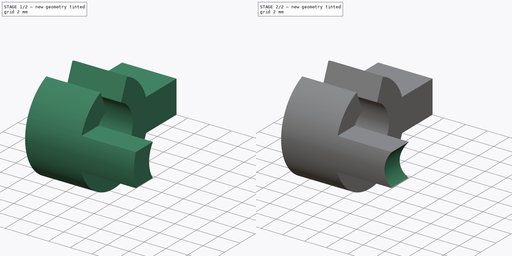
[diagram: build sequence overview — one tinted view per stage of 2, left to right]
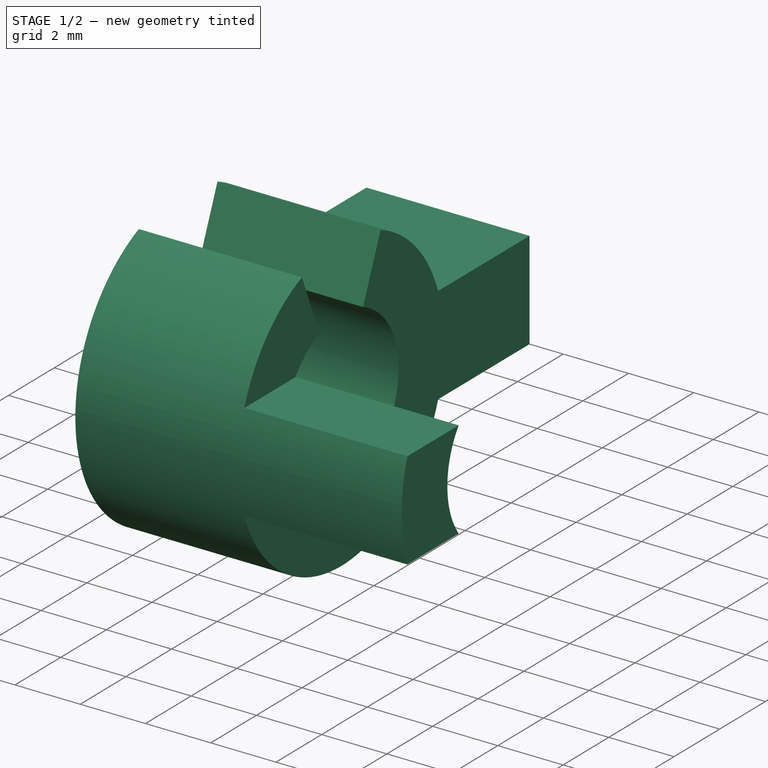
[diagram: stage 1 of 2 — iso view after this stage's code; geometry added in this stage tinted green]
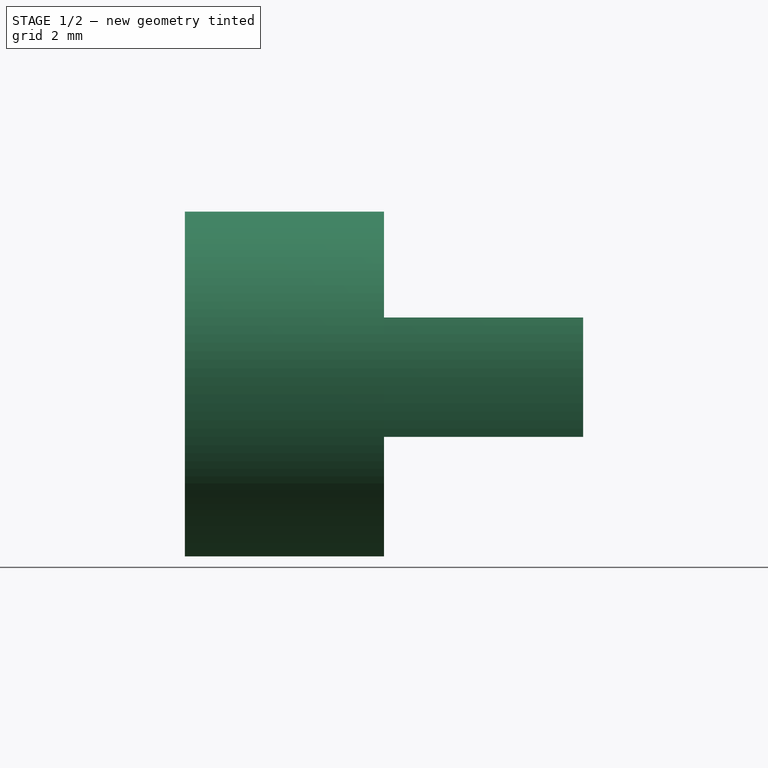
[diagram: stage 1 of 2 — front view after this stage's code; geometry added in this stage tinted green]
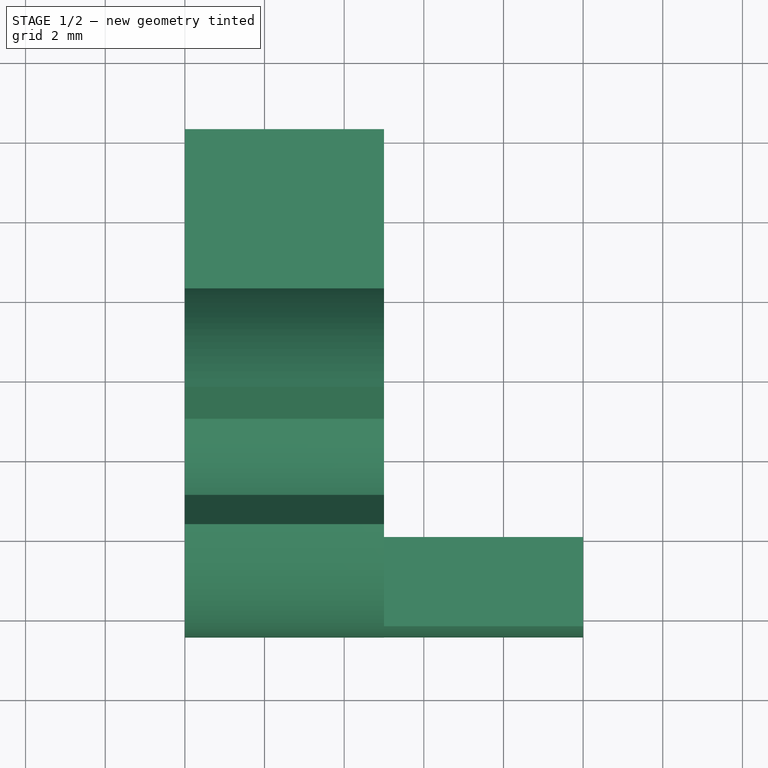
[diagram: stage 1 of 2 — top view after this stage's code; geometry added in this stage tinted green]
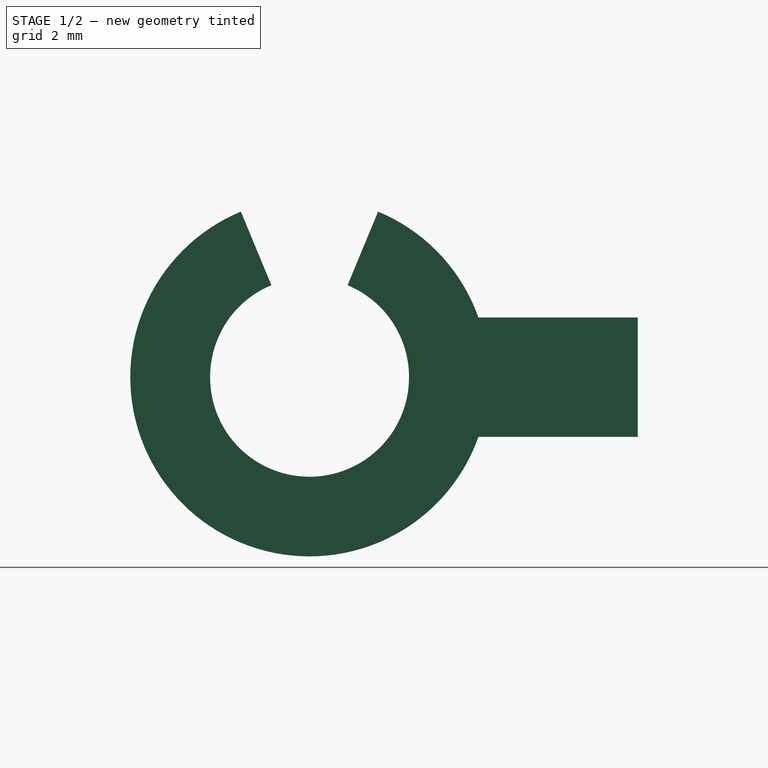
[diagram: stage 1 of 2 — right view after this stage's code; geometry added in this stage tinted green]
FCSTD DOCUMENT  (FreeCAD 1.0R39109 (Git))
Label: stopper
License: All rights reserved
LicenseURL: https://en.wikipedia.org/wiki/All_rights_reserved
objects: PartDesign::Pad×2, Sketcher::SketchObject×1, PartDesign::SubtractiveCylinder×1, PartDesign::Body×1
note: 12 computed .brp shape members not serialized (recipe doc carries the construction recipe); baked Part::Feature solids carry a one-line shape summary decoded from their .brp

FEATURE [Sketcher::SketchObject] Sketch
  ArcFitTolerance = 1e-06
  AttachmentSupport = -> [YZ_Plane]
  FullyConstrained = false
  MakeInternals = false
  MapMode = 5
  Placement = pos=(0,0,0) rot=(0.57735,0.57735,0.57735;2.0944rad)
  expr: Constraints[3] = .Constraints.innerDia + 4 mm
  sketch-geometry (17):
    g0: ArcOfCircle CenterX=0 CenterY=0 CenterZ=0 NormalX=0 NormalY=0 NormalZ=1 AngleXU=0 Radius=4.5 StartAngle=1.9635 EndAngle=5.94335
    g1: ArcOfCircle CenterX=0 CenterY=0 CenterZ=0 NormalX=0 NormalY=0 NormalZ=1 AngleXU=0 Radius=2.5 StartAngle=1.9635 EndAngle=7.46128
    g2: LineSegment StartX=1.72208 StartY=4.15746 StartZ=0 EndX=0.956709 EndY=2.3097 EndZ=0
    g3: LineSegment StartX=-1.72208 StartY=4.15746 StartZ=0 EndX=-0.956709 EndY=2.3097 EndZ=0
    g4: LineSegment [constr] StartX=-0.956709 StartY=2.3097 StartZ=0 EndX=0 EndY=2.3097 EndZ=0
    g5: LineSegment [constr] StartX=0 StartY=2.3097 StartZ=0 EndX=0.956709 EndY=2.3097 EndZ=0
    g6: LineSegment [constr] StartX=-0.956709 StartY=2.3097 StartZ=0 EndX=0 EndY=0 EndZ=0
    g7: LineSegment [constr] StartX=0 StartY=0 StartZ=0 EndX=0.956709 EndY=2.3097 EndZ=0
    g8: LineSegment StartX=-4.24264 StartY=1.5 StartZ=0 EndX=-2 EndY=1.5 EndZ=0
    g9: LineSegment StartX=-2 StartY=-1.5 StartZ=0 EndX=-4.24264 EndY=-1.5 EndZ=0
    g10: LineSegment StartX=4.24264 StartY=1.5 StartZ=0 EndX=8.24264 EndY=1.5 EndZ=0
    g11: LineSegment StartX=4.24264 StartY=-1.5 StartZ=0 EndX=8.24264 EndY=-1.5 EndZ=0
    g12: LineSegment StartX=8.24264 StartY=-1.5 StartZ=0 EndX=8.24264 EndY=1.5 EndZ=0
    g13: ArcOfCircle CenterX=0 CenterY=0 CenterZ=0 NormalX=0 NormalY=0 NormalZ=1 AngleXU=0 Radius=4.5 StartAngle=0.339837 EndAngle=1.1781
    g14: LineSegment [constr] StartX=8.24264 StartY=1.5 StartZ=0 EndX=8.24264 EndY=-1.468e-13 EndZ=0
    g15: ArcOfCircle CenterX=0.021799 CenterY=1.1e-15 CenterZ=0 NormalX=0 NormalY=0 NormalZ=1 AngleXU=0 Radius=2.51747 StartAngle=2.50329 EndAngle=3.7799
    g16: ArcOfCircle CenterX=0.021799 CenterY=1.1e-15 CenterZ=0 NormalX=0 NormalY=0 NormalZ=1 AngleXU=0 Radius=4.52056 StartAngle=2.80336 EndAngle=3.47982
  constraints (46):
    c: Coincident(g0,g-1)
    c: Coincident(g1,g0)
    c: Diameter(g1) = 5  'innerDia'
    c: Diameter(g0) = 9
    c: PointOnObject(g0,g3)
    c: PointOnObject(g0,g2)
    c: Coincident(g4,g3)
    c: PointOnObject(g4,g-2)
    c: Horizontal(g4)
    c: Coincident(g5,g4)
    c: Coincident(g5,g2)
    c: Horizontal(g5)
    c: Coincident(g6,g3)
    c: Coincident(g6,g0)
    c: Coincident(g7,g0)
    c: Coincident(g7,g2)
    c: Angle(g7,g6) = 0.785398
    c: Coincident(g13,g2)
    c: Coincident(g0,g3)
    c: Coincident(g1,g5)
    c: Coincident(g1,g3)
    c: PointOnObject(g8,g0)
    c: PointOnObject(g8,g1)
    c: PointOnObject(g9,g1)
    c: PointOnObject(g9,g0)
    c: PointOnObject(g10,g13)
    c: Horizontal(g10)
    c: Horizontal(g11)
    c: Coincident(g12,g11)
    c: Coincident(g12,g10)
    c: Vertical(g12)
    c: Equal(g0,g13)
    c: Coincident(g0,g11)
    c: PointOnObject(g13,g10)
    c: Coincident(g0,g13)
    c: Tangent(g8,g10)
    c: Tangent(g9,g11)
    c: Coincident(g14,g10)
    c: Symmetric(g12,g12,g14)
    c: DistanceX(g10,g10) = 4
    c: Coincident(g16,g15)
    c: Coincident(g16,g8)
    c: Coincident(g16,g9)
    c: Coincident(g8,g15)
    c: Coincident(g9,g15)
    c: DistanceY(g12,g12) = 3
FEATURE [PartDesign::Pad] Pad
  Direction = (1,0,0)
  Length = 5
  Length2 = 10
  Placement = pos=(0,0,0) rot=(1,1,1;2.0944rad)
  Profile = -> Sketch [Edge7,Edge6,Edge4,Edge5,Edge3,Edge2,Edge1,Vertex11,Edge8]
  ReferenceAxis = -> Sketch [N_Axis]
  Refine = true
  Suppressed = false
  Type = 0
FEATURE [PartDesign::Pad] Pad001
  BaseFeature = -> Pad
  Direction = (1,0,0)
  Length = 10
  Length2 = 10
  Placement = pos=(0,0,0) rot=(1,1,1;2.0944rad)
  Profile = -> Sketch [Edge12,Edge10,Edge9,Edge11]
  ReferenceAxis = -> Sketch [N_Axis]
  Refine = true
  Suppressed = false
  Type = 0
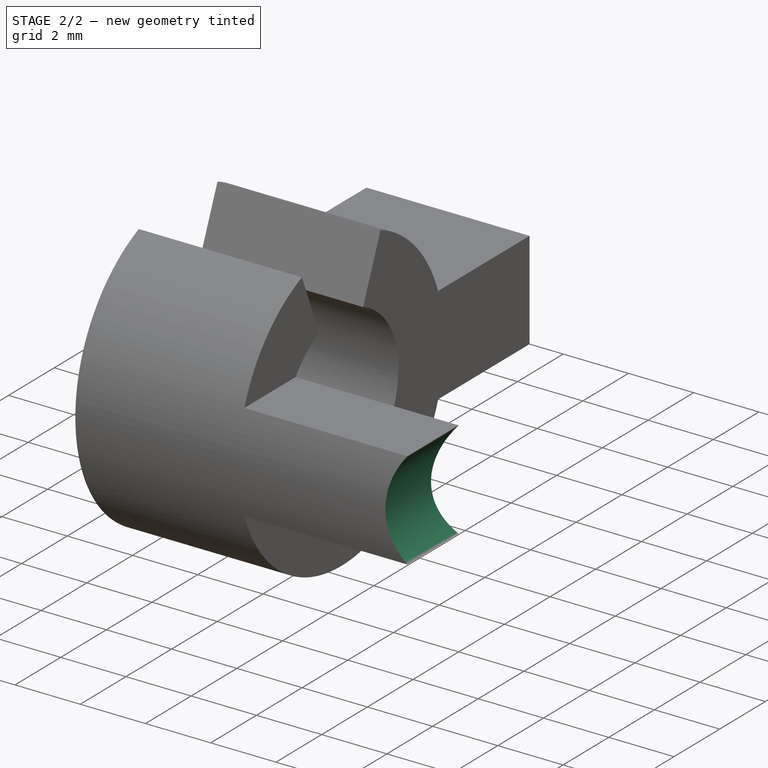
[diagram: stage 2 of 2 — iso view after this stage's code; geometry added in this stage tinted green]
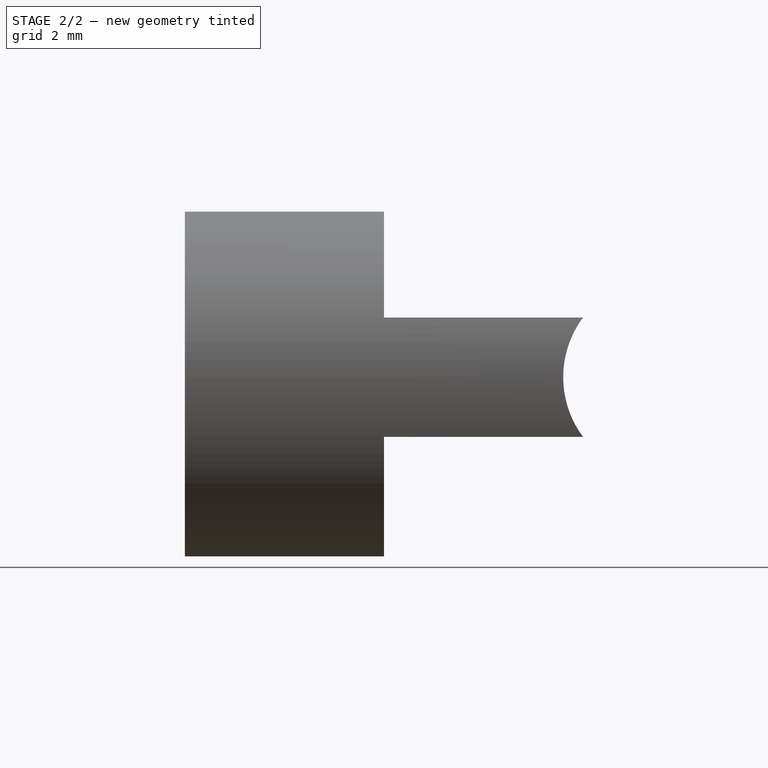
[diagram: stage 2 of 2 — front view after this stage's code; geometry added in this stage tinted green]
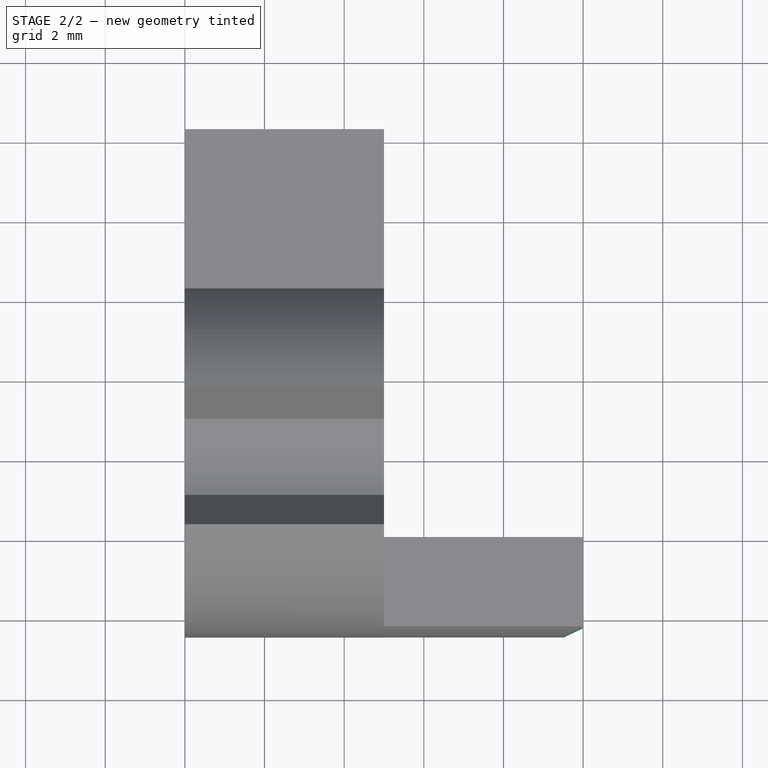
[diagram: stage 2 of 2 — top view after this stage's code; geometry added in this stage tinted green]
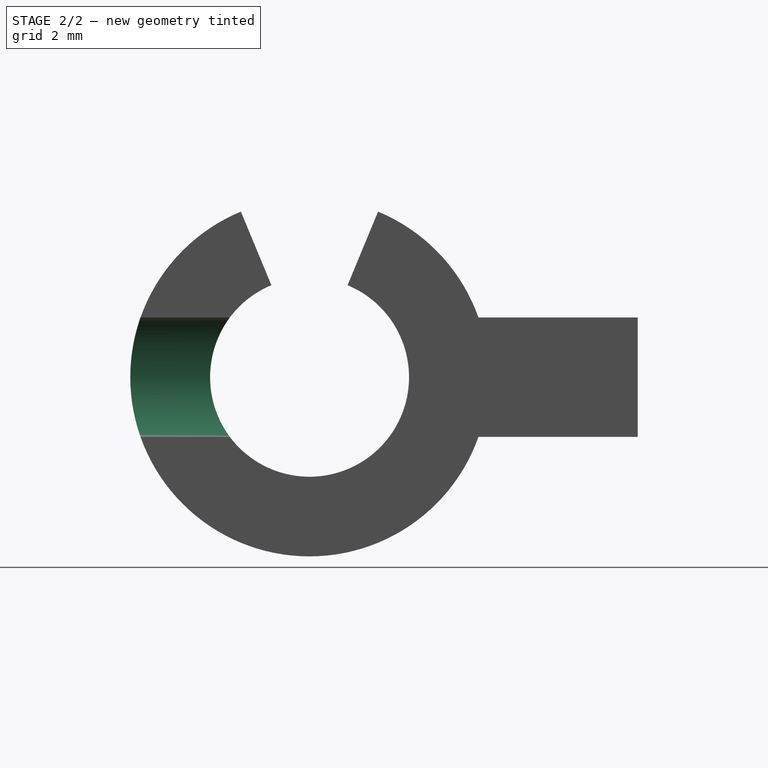
[diagram: stage 2 of 2 — right view after this stage's code; geometry added in this stage tinted green]
FEATURE [PartDesign::SubtractiveCylinder] Cylinder
  Angle = 360
  AttacherType = Attacher::AttachEngine3D
  AttachmentOffset = pos=(0,-12,0) rot=(0,0,1;0rad)
  AttachmentSupport = -> [Z_Axis]
  BaseFeature = -> Pad001
  FirstAngle = 0
  Height = 6
  MapMode = 2
  Placement = pos=(12,0,0) rot=(0.57735,-0.57735,0.57735;2.0944rad)
  Radius = 2.5
  Refine = true
  SecondAngle = 0
  Suppressed = false
FEATURE [PartDesign::Body] Body
  AllowCompound = false
  Group = -> [Sketch,Pad,Pad001,Cylinder]
  Origin = -> Origin
  Tip = -> Cylinder
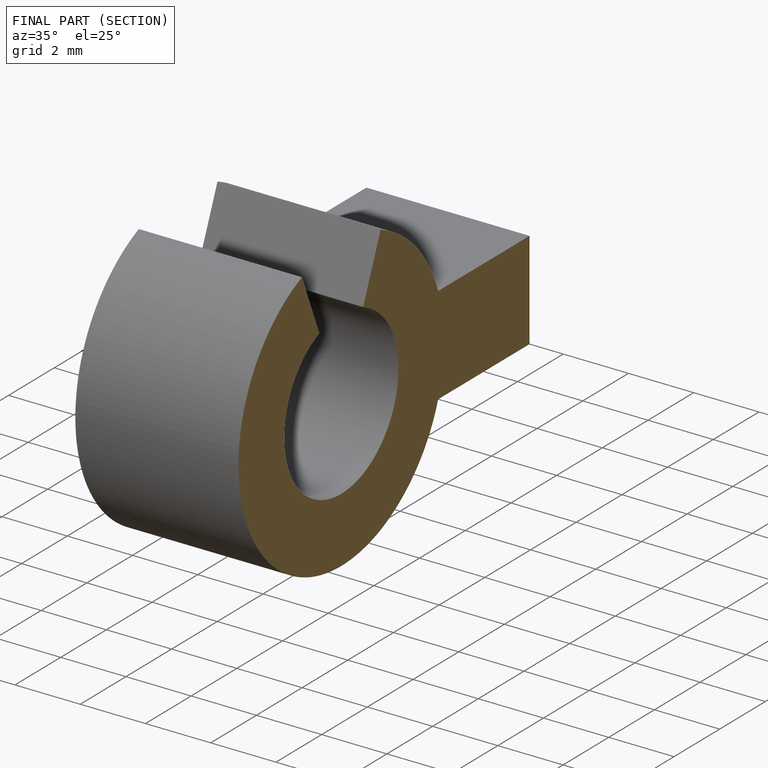
[diagram: finished part — half-section view (interior)]
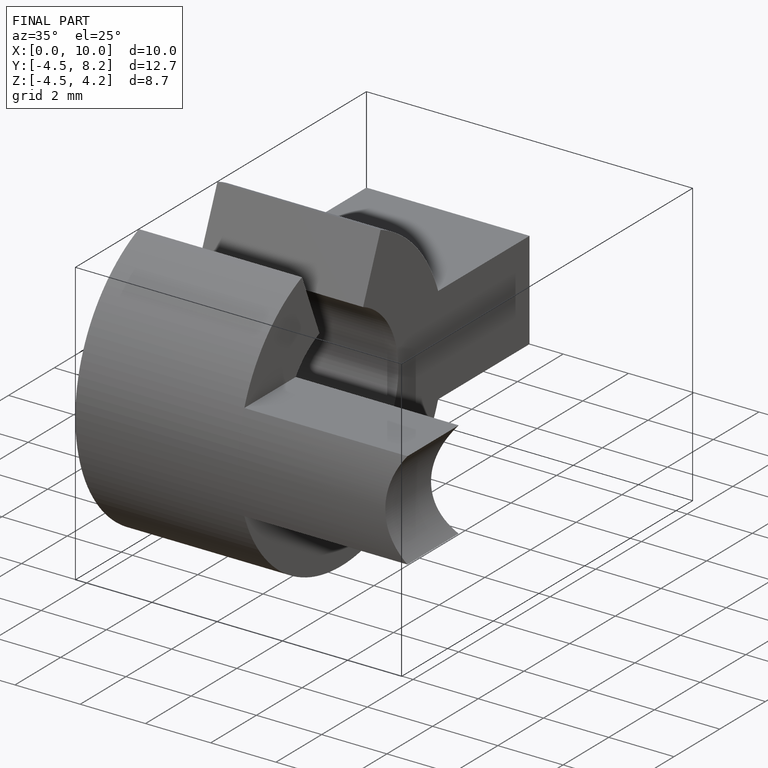
[diagram: finished part — iso view with bounding-box wireframe]
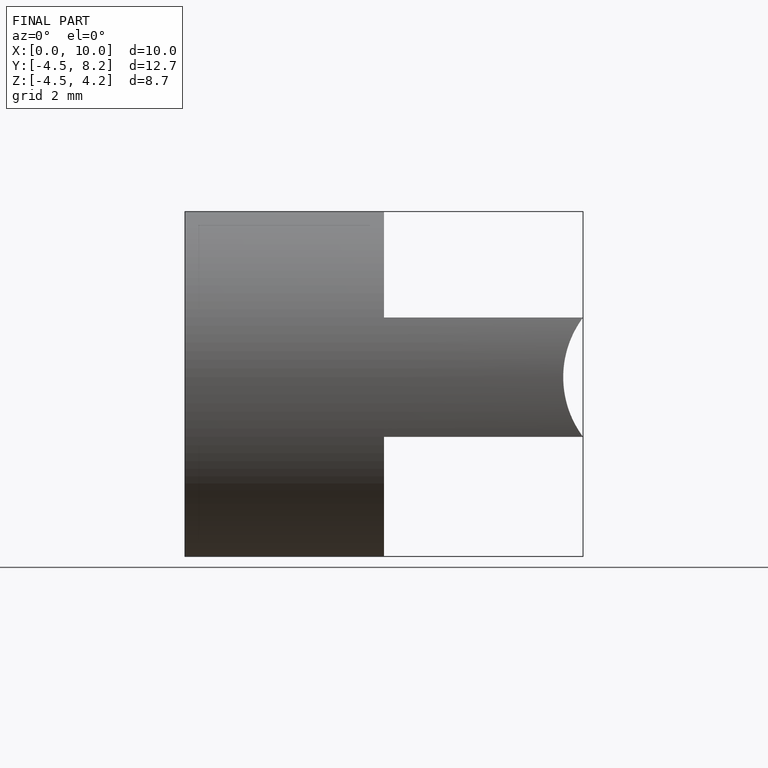
[diagram: finished part — front view with bounding-box wireframe]
